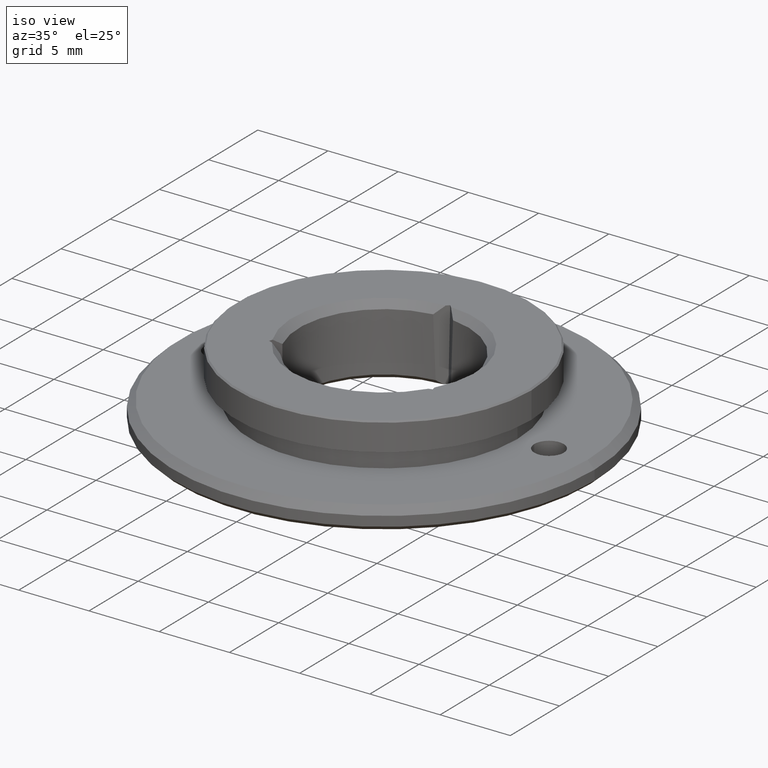
[diagram: clean part render]
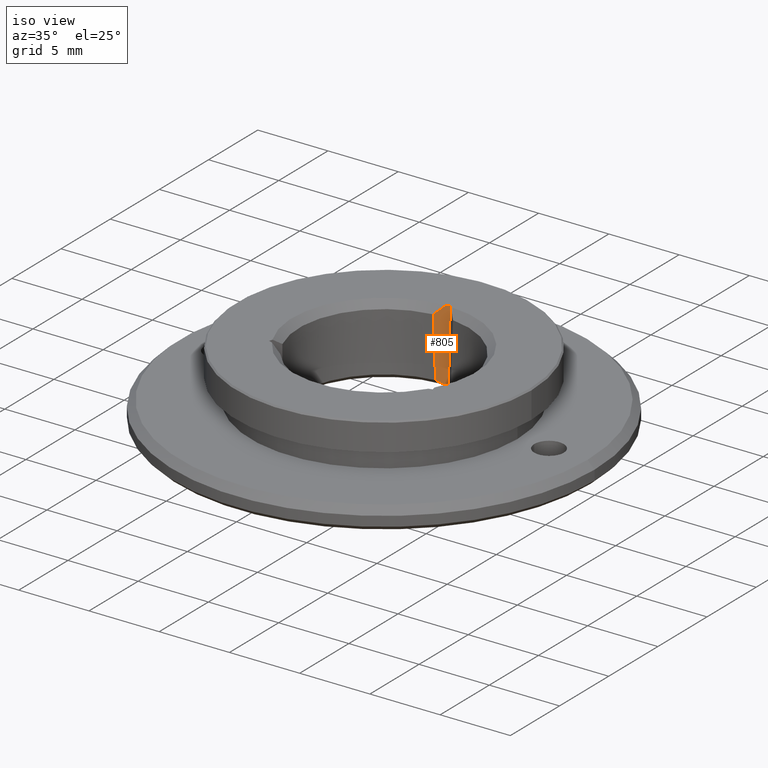
[diagram: same view with one face highlighted and labeled with its STEP entity id]
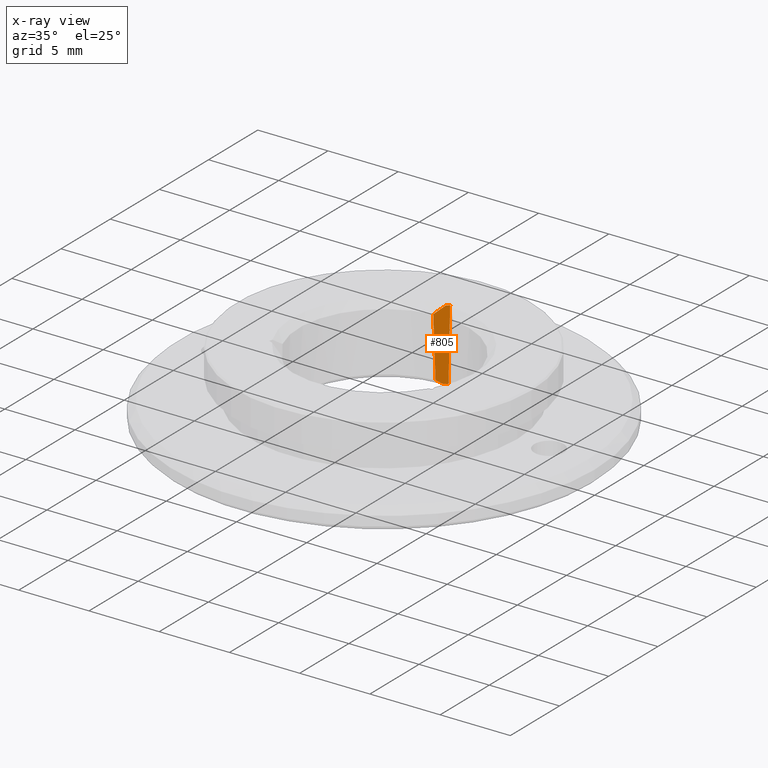
[diagram: x-ray of the same camera — body ghosted, the highlighted face saturated]
A machine part, iso view. The second image highlights one B-rep face of the part: STEP entity #805.
The next image is the same camera in x-ray: the body ghosted, the highlighted face saturated — about 0% of this face is hidden behind the body in this view.
In plain terms, the highlighted planar face has unit normal (-0.7069, 0.7069, -0.0244).
Its self-contained STEP definition (entity closure, byte-faithful):
#8 = B_SPLINE_CURVE_WITH_KNOTS ( 'NONE', 3,
 ( #468, #737, #668, #260 ),
 .UNSPECIFIED., .F., .F.,
 ( 4, 4 ),
 ( 3.743883699496791185E-07, 0.0009016725439581060528 ),
 .UNSPECIFIED. ) ;
#30 = VERTEX_POINT ( 'NONE', #178 ) ;
#31 = CARTESIAN_POINT ( 'NONE',  ( -0.2135933081210453777, 6.346406691878955897, -2.500000000000003109 ) ) ;
#88 = CARTESIAN_POINT ( 'NONE',  ( -0.7069815226384644768, 6.008550334868453469, 2.000000000000001332 ) ) ;
#100 = VERTEX_POINT ( 'NONE', #655 ) ;
#109 = CARTESIAN_POINT ( 'NONE',  ( -0.09140658750383659492, 6.641406587503838388, 2.500000000000001332 ) ) ;
#112 = VECTOR ( 'NONE', #428, 1000.000000000000000 ) ;
#121 = CARTESIAN_POINT ( 'NONE',  ( -0.5449629645617685147, 6.025405825938700666, -2.199999999999994404 ) ) ;
#130 = CARTESIAN_POINT ( 'NONE',  ( 0.0000000000000000000, 6.559999999999999609, -2.500000000000003109 ) ) ;
#134 = CARTESIAN_POINT ( 'NONE',  ( 0.0000000000000000000, 6.559999999999999609, -2.500000000000003109 ) ) ;
#145 = EDGE_LOOP ( 'NONE', ( #562, #264, #784, #801, #632, #379 ) ) ;
#146 = FACE_OUTER_BOUND ( 'NONE', #145, .T. ) ;
#170 = VERTEX_POINT ( 'NONE', #121 ) ;
#178 = CARTESIAN_POINT ( 'NONE',  ( -5.976388874223077395E-16, 6.732813175007672513, 2.500000000000001332 ) ) ;
#195 = DIRECTION ( 'NONE',  ( 0.7071067811865535679, 0.7071067811865415775, 0.0000000000000000000 ) ) ;
#219 = DIRECTION ( 'NONE',  ( -0.7071067811865535679, -0.7071067811865414665, 0.0000000000000000000 ) ) ;
#221 = LINE ( 'NONE', #498, #112 ) ;
#260 = CARTESIAN_POINT ( 'NONE',  ( -0.1854387021565554738, 6.547374472851121396, 2.500000000000001776 ) ) ;
#264 = ORIENTED_EDGE ( 'NONE', *, *, #345, .F. ) ;
#296 = CARTESIAN_POINT ( 'NONE',  ( -0.5449629645617685147, 6.025405825938700666, -2.199999999999994404 ) ) ;
#320 = VECTOR ( 'NONE', #528, 1000.000000000000114 ) ;
#322 = CARTESIAN_POINT ( 'NONE',  ( -0.7069815226384644768, 6.008550334868453469, 2.000000000000001332 ) ) ;
#337 = EDGE_CURVE ( 'NONE', #446, #100, #221, .T. ) ;
#345 = EDGE_CURVE ( 'NONE', #170, #656, #403, .T. ) ;
#350 = AXIS2_PLACEMENT_3D ( 'NONE', #134, #811, #219 ) ;
#363 = CARTESIAN_POINT ( 'NONE',  ( -0.1854387021565554738, 6.547374472851121396, 2.500000000000001776 ) ) ;
#379 = ORIENTED_EDGE ( 'NONE', *, *, #635, .F. ) ;
#386 = LINE ( 'NONE', #109, #856 ) ;
#403 =( BOUNDED_CURVE ( )  B_SPLINE_CURVE ( 3, ( #296, #563, #691, #88 ),
 .UNSPECIFIED., .F., .T. ) 
 B_SPLINE_CURVE_WITH_KNOTS ( ( 4, 4 ),
 ( 5.587985923945605116, 5.614911195664047838 ),
 .UNSPECIFIED. ) 
 CURVE ( )  GEOMETRIC_REPRESENTATION_ITEM ( )  RATIONAL_B_SPLINE_CURVE ( ( 1.000000000000000000, 0.9999395867243703329, 0.9999395867243703329, 1.000000000000000000 ) ) 
 REPRESENTATION_ITEM ( '' )  );
#428 = DIRECTION ( 'NONE',  ( 0.7071067811865535679, 0.7071067811865415775, -0.0000000000000000000 ) ) ;
#446 = VERTEX_POINT ( 'NONE', #31 ) ;
#459 = CARTESIAN_POINT ( 'NONE',  ( -0.5449629645617685147, 6.025405825938700666, -2.199999999999994404 ) ) ;
#468 = CARTESIAN_POINT ( 'NONE',  ( -0.7069815226384644768, 6.008550334868453469, 2.000000000000001332 ) ) ;
#498 = CARTESIAN_POINT ( 'NONE',  ( 0.0000000000000000000, 6.559999999999999609, -2.500000000000003109 ) ) ;
#528 = DIRECTION ( 'NONE',  ( 1.630640357938827635E-16, -0.03454200963600563556, -0.9994032467279191367 ) ) ;
#562 = ORIENTED_EDGE ( 'NONE', *, *, #755, .F. ) ;
#563 = CARTESIAN_POINT ( 'NONE',  ( -0.5990431612079281098, 6.020514586221453968, -0.7768169317319787437 ) ) ;
#591 = CARTESIAN_POINT ( 'NONE',  ( -0.4334755431898210665, 6.133518857966151927, -2.297631136756340897 ) ) ;
#600 = CARTESIAN_POINT ( 'NONE',  ( -0.2135933081210453777, 6.346406691878955897, -2.500000000000003109 ) ) ;
#627 = EDGE_CURVE ( 'NONE', #30, #100, #662, .T. ) ;
#632 = ORIENTED_EDGE ( 'NONE', *, *, #627, .F. ) ;
#635 = EDGE_CURVE ( 'NONE', #854, #30, #386, .T. ) ;
#655 = CARTESIAN_POINT ( 'NONE',  ( 0.0000000000000000000, 6.559999999999999609, -2.500000000000003109 ) ) ;
#656 = VERTEX_POINT ( 'NONE', #322 ) ;
#662 = LINE ( 'NONE', #130, #320 ) ;
#668 = CARTESIAN_POINT ( 'NONE',  ( -0.3565878712521965421, 6.370274175844049758, 2.327816139852491695 ) ) ;
#685 = EDGE_CURVE ( 'NONE', #446, #170, #726, .T. ) ;
#691 = CARTESIAN_POINT ( 'NONE',  ( -0.6530526101212164036, 6.014895749745721609, 0.6232676519638417068 ) ) ;
#726 = B_SPLINE_CURVE_WITH_KNOTS ( 'NONE', 3,
 ( #600, #872, #591, #459 ),
 .UNSPECIFIED., .F., .F.,
 ( 4, 4 ),
 ( 3.589571260329331008E-07, 0.0005506746893595078655 ),
 .UNSPECIFIED. ) ;
#737 = CARTESIAN_POINT ( 'NONE',  ( -0.5301155806176975904, 6.190963421325710314, 2.160495414665191127 ) ) ;
#755 = EDGE_CURVE ( 'NONE', #656, #854, #8, .T. ) ;
#762 = PLANE ( 'NONE',  #350 ) ;
#784 = ORIENTED_EDGE ( 'NONE', *, *, #685, .F. ) ;
#801 = ORIENTED_EDGE ( 'NONE', *, *, #337, .T. ) ;
#805 = ADVANCED_FACE ( 'NONE', ( #146 ), #762, .F. ) ;
#811 = DIRECTION ( 'NONE',  ( -0.7068957025865626465, 0.7068957025865747479, -0.02443217815265320142 ) ) ;
#854 = VERTEX_POINT ( 'NONE', #363 ) ;
#856 = VECTOR ( 'NONE', #195, 1000.000000000000000 ) ;
#872 = CARTESIAN_POINT ( 'NONE',  ( -0.3230620799313043690, 6.240470032637637665, -2.397805460469686345 ) ) ;